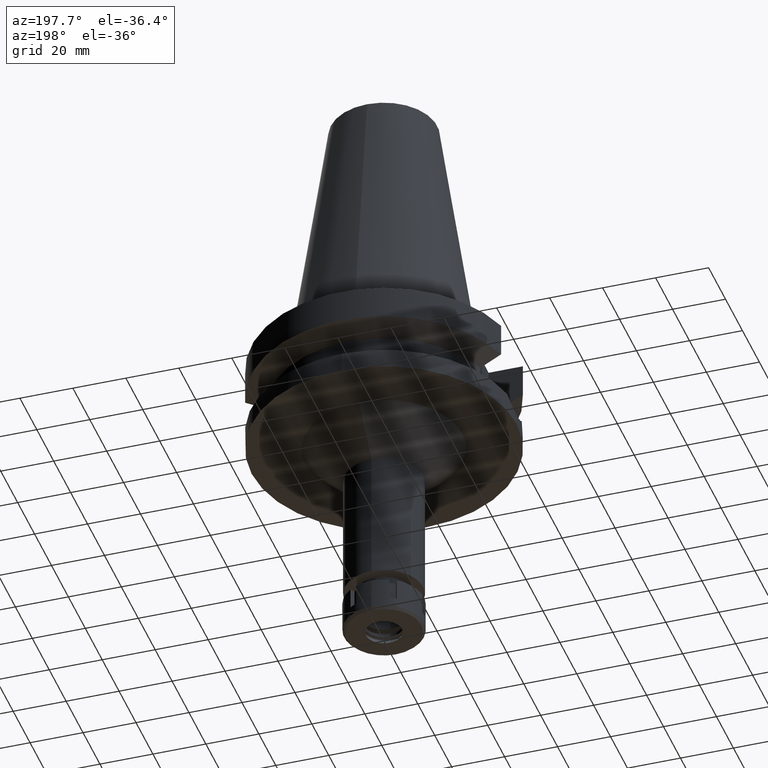
[diagram: clean part render]
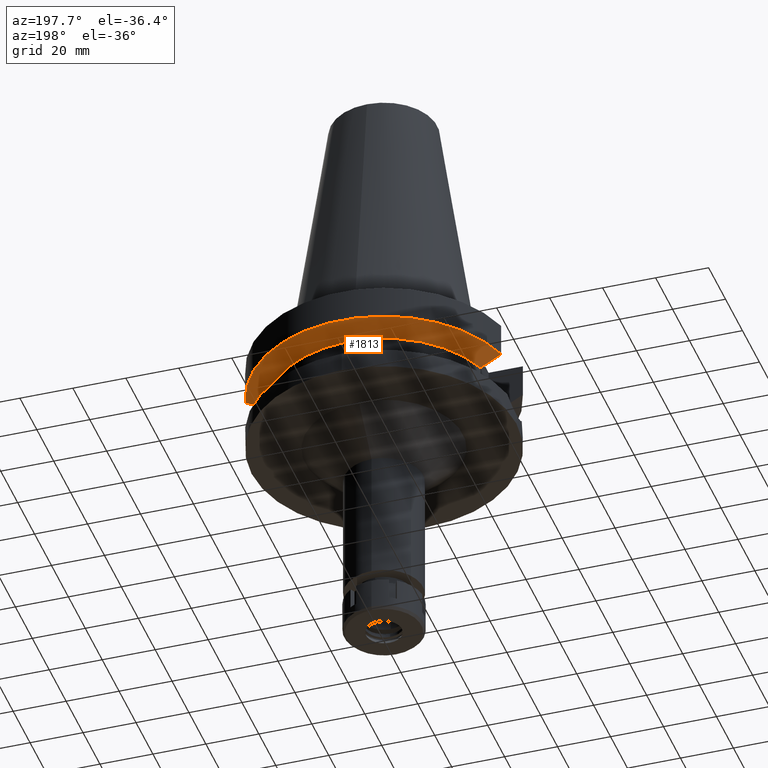
[diagram: same view with one face highlighted and labeled with its STEP entity id]
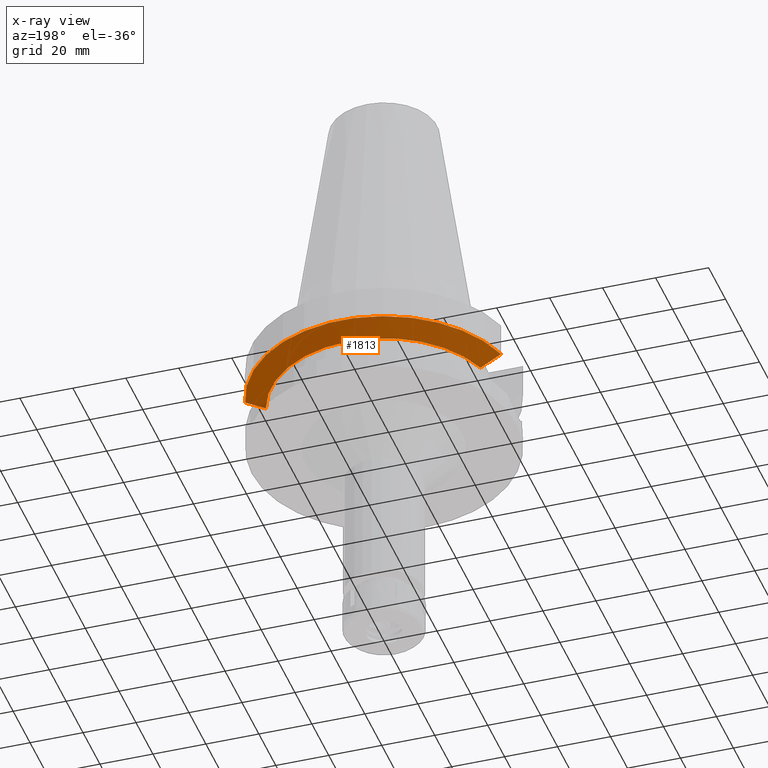
[diagram: x-ray of the same camera — body ghosted, the highlighted face saturated]
A machine part, auxiliary view. The second image highlights one B-rep face of the part: STEP entity #1813.
The next image is the same camera in x-ray: the body ghosted, the highlighted face saturated — about 0% of this face is hidden behind the body in this view.
In plain terms, the highlighted conical surface has half-angle 60 deg.
Its self-contained STEP definition (entity closure, byte-faithful):
#9 = AXIS2_PLACEMENT_3D ( 'NONE', #3164, #357, #658 ) ;
#25 = CARTESIAN_POINT ( 'NONE',  ( 48.32056912870000076, 12.85000385518000066, -15.66265770132999791 ) ) ;
#92 = ORIENTED_EDGE ( 'NONE', *, *, #676, .T. ) ;
#216 = FACE_OUTER_BOUND ( 'NONE', #1614, .T. ) ;
#316 = VERTEX_POINT ( 'NONE', #2628 ) ;
#357 = DIRECTION ( 'NONE',  ( 0.0000000000000000000, 0.0000000000000000000, 1.000000000000000000 ) ) ;
#531 = CARTESIAN_POINT ( 'NONE',  ( -42.90863200507975961, 12.84999309348668639, -18.67324386652110491 ) ) ;
#658 = DIRECTION ( 'NONE',  ( 0.0000000000000000000, 1.000000000000000000, 0.0000000000000000000 ) ) ;
#659 = DIRECTION ( 'NONE',  ( -0.9531960443486575674, 0.3023529411764863672, 0.0000000000000000000 ) ) ;
#676 = EDGE_CURVE ( 'NONE', #2766, #1433, #2901, .T. ) ;
#807 = DIRECTION ( 'NONE',  ( 0.0000000000000000000, 0.0000000000000000000, 1.000000000000000000 ) ) ;
#898 = CARTESIAN_POINT ( 'NONE',  ( -48.32056912851999897, 12.85000385585999894, -15.66265769529000274 ) ) ;
#1035 = CARTESIAN_POINT ( 'NONE',  ( -48.32056912851999897, 12.85000385585999894, -15.66265769529000274 ) ) ;
#1070 = DIRECTION ( 'NONE',  ( 0.0000000000000000000, 1.000000000000000000, 0.0000000000000000000 ) ) ;
#1215 = CARTESIAN_POINT ( 'NONE',  ( 0.0000000000000000000, 1.006319759053999930E-14, -19.99281925464999787 ) ) ;
#1429 = B_SPLINE_CURVE_WITH_KNOTS ( 'NONE', 3,
 ( #25, #3485, #1795, #1437 ),
 .UNSPECIFIED., .F., .F.,
 ( 4, 4 ),
 ( 0.0000000000000000000, 1.000000000000000000 ),
 .UNSPECIFIED. ) ;
#1433 = VERTEX_POINT ( 'NONE', #1035 ) ;
#1437 = CARTESIAN_POINT ( 'NONE',  ( 40.51083297742999889, 12.84999655542999975, -19.99284568931999928 ) ) ;
#1511 = ORIENTED_EDGE ( 'NONE', *, *, #2003, .F. ) ;
#1541 = AXIS2_PLACEMENT_3D ( 'NONE', #3624, #807, #1070 ) ;
#1614 = EDGE_LOOP ( 'NONE', ( #1511, #3521, #1747, #92 ) ) ;
#1651 = AXIS2_PLACEMENT_3D ( 'NONE', #1215, #2379, #659 ) ;
#1747 = ORIENTED_EDGE ( 'NONE', *, *, #3155, .F. ) ;
#1795 = CARTESIAN_POINT ( 'NONE',  ( 42.90862464016412048, 12.84999310385319760, -18.67324794868867244 ) ) ;
#1813 = ADVANCED_FACE ( 'NONE', ( #216 ), #1842, .T. ) ;
#1842 = CONICAL_SURFACE ( 'NONE', #1541, 46.25000000000000000, 1.047197551196400456 ) ;
#2003 = EDGE_CURVE ( 'NONE', #3089, #1433, #2053, .T. ) ;
#2005 = EDGE_CURVE ( 'NONE', #3089, #316, #1429, .T. ) ;
#2032 = CARTESIAN_POINT ( 'NONE',  ( -40.51083188481999997, 12.84999999999999964, -19.99281925464999787 ) ) ;
#2053 = CIRCLE ( 'NONE', #9, 50.00000000000000000 ) ;
#2379 = DIRECTION ( 'NONE',  ( 0.0000000000000000000, 0.0000000000000000000, -1.000000000000000000 ) ) ;
#2569 = CARTESIAN_POINT ( 'NONE',  ( -40.51083188481999997, 12.84999999999999964, -19.99281925464999787 ) ) ;
#2628 = CARTESIAN_POINT ( 'NONE',  ( 40.51083297742999889, 12.84999655542999975, -19.99284568931999928 ) ) ;
#2766 = VERTEX_POINT ( 'NONE', #2032 ) ;
#2866 = CARTESIAN_POINT ( 'NONE',  ( 48.32056912870000076, 12.85000385518000066, -15.66265770132999791 ) ) ;
#2901 = B_SPLINE_CURVE_WITH_KNOTS ( 'NONE', 3,
 ( #2569, #531, #3379, #898 ),
 .UNSPECIFIED., .F., .F.,
 ( 4, 4 ),
 ( 0.0000000000000000000, 1.000000000000000000 ),
 .UNSPECIFIED. ) ;
#3089 = VERTEX_POINT ( 'NONE', #2866 ) ;
#3155 = EDGE_CURVE ( 'NONE', #2766, #316, #3376, .T. ) ;
#3164 = CARTESIAN_POINT ( 'NONE',  ( 0.0000000000000000000, 1.006319759053999930E-14, -15.66269223573000069 ) ) ;
#3376 = CIRCLE ( 'NONE', #1651, 42.50000000000002132 ) ;
#3379 = CARTESIAN_POINT ( 'NONE',  ( -45.51180269473579898, 12.85000770707120488, -17.22986500627935769 ) ) ;
#3485 = CARTESIAN_POINT ( 'NONE',  ( 45.51179877244622674, 12.85000770571589257, -17.22986719495866836 ) ) ;
#3521 = ORIENTED_EDGE ( 'NONE', *, *, #2005, .T. ) ;
#3624 = CARTESIAN_POINT ( 'NONE',  ( 0.0000000000000000000, 1.006319759053999930E-14, -17.82775574519000017 ) ) ;